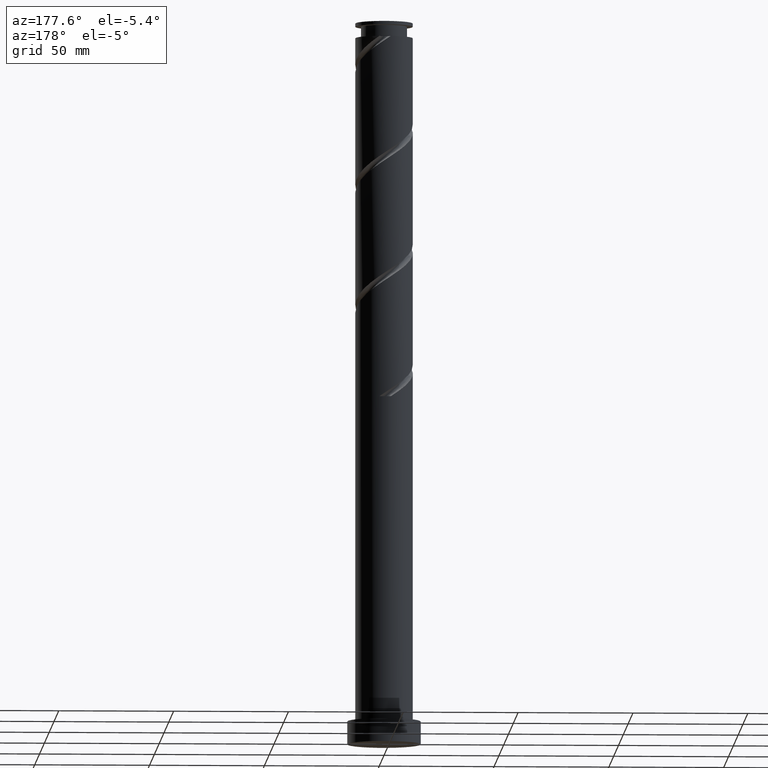
[diagram: clean part render]
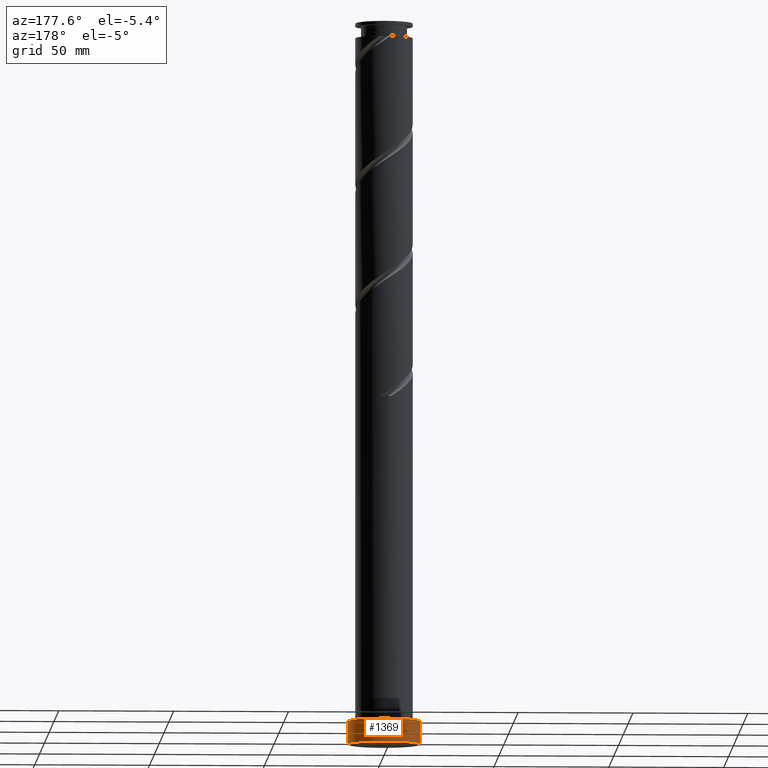
[diagram: same view with one face highlighted and labeled with its STEP entity id]
A machine part, auxiliary view. The second image highlights one B-rep face of the part: STEP entity #1369.
In plain terms, the highlighted cylindrical surface (partial cylindrical patch) has radius 16 mm, axis along (-0, -0, -1).
Its self-contained STEP definition (entity closure, byte-faithful):
#50 = LINE ( 'NONE', #338, #1244 ) ;
#91 = AXIS2_PLACEMENT_3D ( 'NONE', #116, #1191, #1613 ) ;
#116 = CARTESIAN_POINT ( 'NONE',  ( 0.000000000000000000, 0.000000000000000000, 0.000000000000000000 ) ) ;
#228 = ORIENTED_EDGE ( 'NONE', *, *, #714, .T. ) ;
#305 = ORIENTED_EDGE ( 'NONE', *, *, #1769, .F. ) ;
#338 = CARTESIAN_POINT ( 'NONE',  ( 16.00000000000000000, 1.959434878635765131E-15, 10.00000000000000000 ) ) ;
#362 = EDGE_CURVE ( 'NONE', #728, #867, #1821, .T. ) ;
#473 = CYLINDRICAL_SURFACE ( 'NONE', #1344, 16.00000000000000000 ) ;
#493 = CARTESIAN_POINT ( 'NONE',  ( 16.00000000000000000, 1.959434878635765131E-15, 10.00000000000000000 ) ) ;
#497 = CIRCLE ( 'NONE', #91, 16.00000000000000000 ) ;
#535 = EDGE_CURVE ( 'NONE', #1137, #867, #497, .T. ) ;
#536 = CARTESIAN_POINT ( 'NONE',  ( -16.00000000000000000, 0.000000000000000000, 0.000000000000000000 ) ) ;
#564 = CIRCLE ( 'NONE', #1802, 16.00000000000000000 ) ;
#621 = FACE_OUTER_BOUND ( 'NONE', #1415, .T. ) ;
#652 = CARTESIAN_POINT ( 'NONE',  ( 0.000000000000000000, 0.000000000000000000, 10.00000000000000000 ) ) ;
#714 = EDGE_CURVE ( 'NONE', #1765, #1137, #50, .T. ) ;
#728 = VERTEX_POINT ( 'NONE', #1501 ) ;
#765 = DIRECTION ( 'NONE',  ( -0.000000000000000000, -0.000000000000000000, -1.000000000000000000 ) ) ;
#774 = CARTESIAN_POINT ( 'NONE',  ( 0.000000000000000000, 0.000000000000000000, 10.00000000000000000 ) ) ;
#867 = VERTEX_POINT ( 'NONE', #536 ) ;
#876 = VECTOR ( 'NONE', #1673, 1000.000000000000000 ) ;
#1080 = CARTESIAN_POINT ( 'NONE',  ( -16.00000000000000000, 0.000000000000000000, 10.00000000000000000 ) ) ;
#1087 = DIRECTION ( 'NONE',  ( 0.000000000000000000, 0.000000000000000000, 1.000000000000000000 ) ) ;
#1137 = VERTEX_POINT ( 'NONE', #1462 ) ;
#1191 = DIRECTION ( 'NONE',  ( 0.000000000000000000, 0.000000000000000000, 1.000000000000000000 ) ) ;
#1206 = DIRECTION ( 'NONE',  ( 1.000000000000000000, 0.000000000000000000, 0.000000000000000000 ) ) ;
#1244 = VECTOR ( 'NONE', #765, 1000.000000000000000 ) ;
#1344 = AXIS2_PLACEMENT_3D ( 'NONE', #652, #1722, #1400 ) ;
#1369 = ADVANCED_FACE ( 'NONE', ( #621 ), #473, .T. ) ;
#1400 = DIRECTION ( 'NONE',  ( -1.000000000000000000, 0.000000000000000000, 0.000000000000000000 ) ) ;
#1415 = EDGE_LOOP ( 'NONE', ( #305, #228, #1465, #1589 ) ) ;
#1462 = CARTESIAN_POINT ( 'NONE',  ( 16.00000000000000000, 1.959434878635765131E-15, 0.000000000000000000 ) ) ;
#1465 = ORIENTED_EDGE ( 'NONE', *, *, #535, .T. ) ;
#1501 = CARTESIAN_POINT ( 'NONE',  ( -16.00000000000000000, 0.000000000000000000, 10.00000000000000000 ) ) ;
#1589 = ORIENTED_EDGE ( 'NONE', *, *, #362, .F. ) ;
#1613 = DIRECTION ( 'NONE',  ( 1.000000000000000000, 0.000000000000000000, 0.000000000000000000 ) ) ;
#1673 = DIRECTION ( 'NONE',  ( -0.000000000000000000, -0.000000000000000000, -1.000000000000000000 ) ) ;
#1722 = DIRECTION ( 'NONE',  ( -0.000000000000000000, -0.000000000000000000, -1.000000000000000000 ) ) ;
#1765 = VERTEX_POINT ( 'NONE', #493 ) ;
#1769 = EDGE_CURVE ( 'NONE', #1765, #728, #564, .T. ) ;
#1802 = AXIS2_PLACEMENT_3D ( 'NONE', #774, #1087, #1206 ) ;
#1821 = LINE ( 'NONE', #1080, #876 ) ;